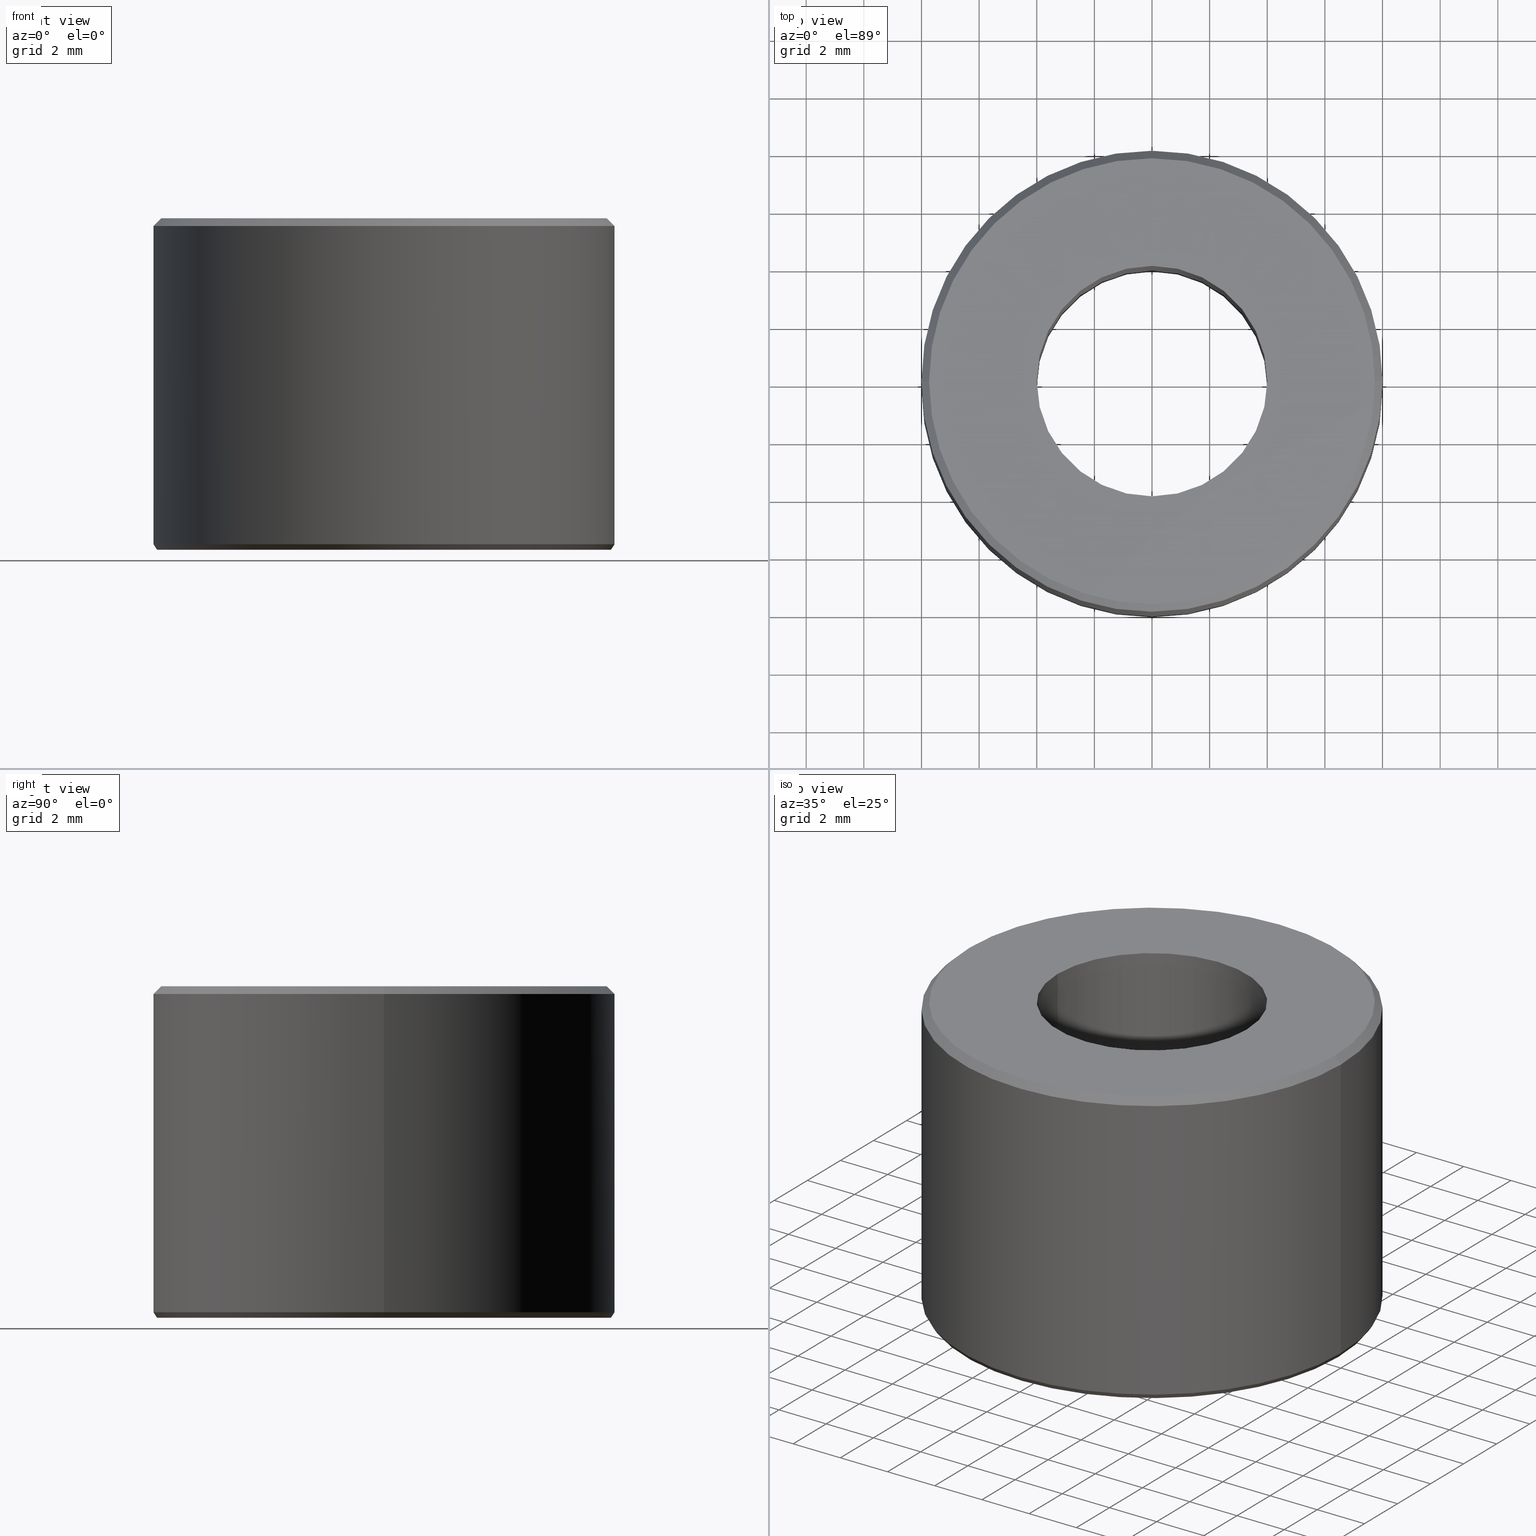
[diagram: canonical four-view strip — front | top / right | iso, engineering-drawing reading convention]
A machine part, canonical four-view strip (front | top / right | iso — engineering-drawing reading convention). The complete STEP part file that produces these views, byte-faithful:
ISO-10303-21;
HEADER;
FILE_DESCRIPTION (( 'STEP AP203' ),
    '1' );
FILE_NAME ('UM ER 11 M.STEP',
    '2019-04-22T08:53:59',
    ( '' ),
    ( '' ),
    'SwSTEP 2.0',
    'SolidWorks 2014',
    '' );
FILE_SCHEMA (( 'CONFIG_CONTROL_DESIGN' ));
ENDSEC;

DATA;
#1 = LOCAL_TIME ( 14, 23, 59.00000000000000000, #77 ) ;
#2 = ORIENTED_EDGE ( 'NONE', *, *, #282, .T. ) ;
#3 = EDGE_CURVE ( 'NONE', #91, #215, #121, .T. ) ;
#4 = ORIENTED_EDGE ( 'NONE', *, *, #203, .F. ) ;
#5 = ORIENTED_EDGE ( 'NONE', *, *, #276, .T. ) ;
#6 = CC_DESIGN_SECURITY_CLASSIFICATION ( #33, ( #305 ) ) ;
#7 = DATE_AND_TIME ( #83, #167 ) ;
#8 = CALENDAR_DATE ( 2019, 22, 4 ) ;
#9 = CARTESIAN_POINT ( 'NONE',  ( 0.0000000000000000000, 0.0000000000000000000, 0.1893181058988668800 ) ) ;
#10 = EDGE_LOOP ( 'NONE', ( #114, #18, #205, #178 ) ) ;
#11 = CARTESIAN_POINT ( 'NONE',  ( 0.0000000000000000000, 0.0000000000000000000, -1.942890293094023900E-013 ) ) ;
#12 = EDGE_LOOP ( 'NONE', ( #233, #139, #64, #95 ) ) ;
#13 = DIRECTION ( 'NONE',  ( -0.0000000000000000000, -0.0000000000000000000, 1.000000000000000000 ) ) ;
#14 = CARTESIAN_POINT ( 'NONE',  ( 0.0000000000000000000, 0.0000000000000000000, -1.942890293094023900E-013 ) ) ;
#15 = DIRECTION ( 'NONE',  ( -0.0000000000000000000, -0.0000000000000000000, 1.000000000000000000 ) ) ;
#16 = AXIS2_PLACEMENT_3D ( 'NONE', #87, #120, #279 ) ;
#17 = CARTESIAN_POINT ( 'NONE',  ( 0.0000000000000000000, 0.0000000000000000000, 73.48525816159543900 ) ) ;
#18 = ORIENTED_EDGE ( 'NONE', *, *, #254, .T. ) ;
#19 = PERSON_AND_ORGANIZATION_ROLE ( 'design_supplier' ) ;
#20 = PRODUCT_RELATED_PRODUCT_CATEGORY ( 'detail', '', ( #174 ) ) ;
#21 = DIRECTION ( 'NONE',  ( 0.0000000000000000000, 0.0000000000000000000, 1.000000000000000000 ) ) ;
#22 = DIRECTION ( 'NONE',  ( -0.0000000000000000000, -0.0000000000000000000, 1.000000000000000000 ) ) ;
#23 = PERSON_AND_ORGANIZATION ( #296, #126 ) ;
#24 = CARTESIAN_POINT ( 'NONE',  ( 7.734513274336237000, 9.634610658778705300E-016, 11.49999999999980300 ) ) ;
#25 = DIRECTION ( 'NONE',  ( 0.5451180342252927000, 0.0000000000000000000, 0.8383593076732389600 ) ) ;
#26 = CARTESIAN_POINT ( 'NONE',  ( 8.000000000000000000, 0.0000000000000000000, 0.1893181058988668800 ) ) ;
#27 = ADVANCED_FACE ( 'NONE', ( #188 ), #60, .T. ) ;
#28 = CC_DESIGN_PERSON_AND_ORGANIZATION_ASSIGNMENT ( #236, #130, ( #33 ) ) ;
#29 = PERSON_AND_ORGANIZATION ( #296, #126 ) ;
#30 = ADVANCED_FACE ( 'NONE', ( #113 ), #34, .T. ) ;
#31 = ADVANCED_FACE ( 'NONE', ( #180 ), #160, .T. ) ;
#32 = ORIENTED_EDGE ( 'NONE', *, *, #127, .F. ) ;
#33 = SECURITY_CLASSIFICATION ( '', '', #164 ) ;
#34 = CYLINDRICAL_SURFACE ( 'NONE', #39, 8.000000000000000000 ) ;
#35 = AXIS2_PLACEMENT_3D ( 'NONE', #190, #179, #209 ) ;
#36 = UNCERTAINTY_MEASURE_WITH_UNIT (LENGTH_MEASURE( 1.000000000000000100E-005 ), #342, 'distance_accuracy_value', 'NONE');
#37 = LINE ( 'NONE', #240, #326 ) ;
#38 = CARTESIAN_POINT ( 'NONE',  ( -7.876901570977517000, 9.646422296096375300E-016, -1.942890293094023900E-013 ) ) ;
#39 = AXIS2_PLACEMENT_3D ( 'NONE', #202, #271, #273 ) ;
#40 = DIRECTION ( 'NONE',  ( -0.0000000000000000000, -0.0000000000000000000, 1.000000000000000000 ) ) ;
#41 = CARTESIAN_POINT ( 'NONE',  ( -3.999999999999998200, 4.898587196589411800E-016, 11.49999999999980300 ) ) ;
#42 = EDGE_LOOP ( 'NONE', ( #224, #85 ) ) ;
#43 = ORIENTED_EDGE ( 'NONE', *, *, #290, .T. ) ;
#44 = CARTESIAN_POINT ( 'NONE',  ( 0.0000000000000000000, 0.0000000000000000000, 11.23451327433603500 ) ) ;
#45 = DATE_TIME_ROLE ( 'classification_date' ) ;
#46 = CARTESIAN_POINT ( 'NONE',  ( 0.0000000000000000000, 0.0000000000000000000, 11.49999999999980300 ) ) ;
#47 = DIRECTION ( 'NONE',  ( -0.0000000000000000000, -0.0000000000000000000, 1.000000000000000000 ) ) ;
#48 = APPLICATION_PROTOCOL_DEFINITION ( 'international standard', 'config_control_design', 1994, #106 ) ;
#49 = CARTESIAN_POINT ( 'NONE',  ( 0.0000000000000000000, 0.0000000000000000000, -1.942890293094023900E-013 ) ) ;
#50 = APPLICATION_PROTOCOL_DEFINITION ( 'international standard', 'config_control_design', 1994, #69 ) ;
#51 = CARTESIAN_POINT ( 'NONE',  ( 3.999999999999998200, 0.0000000000000000000, 11.49999999999980300 ) ) ;
#52 = PERSON_AND_ORGANIZATION ( #296, #126 ) ;
#53 = APPROVAL_ROLE ( '' ) ;
#54 = EDGE_LOOP ( 'NONE', ( #283, #306 ) ) ;
#55 = ORIENTED_EDGE ( 'NONE', *, *, #325, .T. ) ;
#56 = DESIGN_CONTEXT ( 'detailed design', #69, 'design' ) ;
#57 = VECTOR ( 'NONE', #25, 1000.000000000000000 ) ;
#58 = EDGE_CURVE ( 'NONE', #328, #63, #98, .T. ) ;
#59 = AXIS2_PLACEMENT_3D ( 'NONE', #263, #317, #157 ) ;
#60 = CONICAL_SURFACE ( 'NONE', #312, 8.000000000000000000, 0.7853981633974401700 ) ;
#61 = LINE ( 'NONE', #155, #189 ) ;
#62 = VERTEX_POINT ( 'NONE', #24 ) ;
#63 = VERTEX_POINT ( 'NONE', #51 ) ;
#64 = ORIENTED_EDGE ( 'NONE', *, *, #262, .T. ) ;
#65 = ORIENTED_EDGE ( 'NONE', *, *, #143, .T. ) ;
#66 = CARTESIAN_POINT ( 'NONE',  ( 4.000000000000000000, 0.0000000000000000000, -1.942890293094023900E-013 ) ) ;
#67 = AXIS2_PLACEMENT_3D ( 'NONE', #131, #15, #162 ) ;
#68 =( NAMED_UNIT ( * ) SI_UNIT ( $, .STERADIAN. ) SOLID_ANGLE_UNIT ( ) );
#69 = APPLICATION_CONTEXT ( 'configuration controlled 3d designs of mechanical parts and assemblies' ) ;
#70 =( NAMED_UNIT ( * ) PLANE_ANGLE_UNIT ( ) SI_UNIT ( $, .RADIAN. ) );
#71 = DIRECTION ( 'NONE',  ( -0.0000000000000000000, -0.0000000000000000000, 1.000000000000000000 ) ) ;
#72 = ORIENTED_EDGE ( 'NONE', *, *, #210, .F. ) ;
#73 = CARTESIAN_POINT ( 'NONE',  ( 0.0000000000000000000, 0.0000000000000000000, 11.49999999999980300 ) ) ;
#74 = DATE_TIME_ROLE ( 'creation_date' ) ;
#75 = CARTESIAN_POINT ( 'NONE',  ( 0.0000000000000000000, 0.0000000000000000000, 73.48525816159543900 ) ) ;
#76 = VERTEX_POINT ( 'NONE', #343 ) ;
#77 = COORDINATED_UNIVERSAL_TIME_OFFSET ( 5, 30, .AHEAD. ) ;
#78 = CLOSED_SHELL ( 'NONE', ( #332, #30, #176, #337, #281, #322, #187, #31, #27, #99 ) ) ;
#79 = CIRCLE ( 'NONE', #175, 4.000000000000000000 ) ;
#80 = ORIENTED_EDGE ( 'NONE', *, *, #249, .T. ) ;
#81 = ORIENTED_EDGE ( 'NONE', *, *, #181, .F. ) ;
#82 = ORIENTED_EDGE ( 'NONE', *, *, #268, .F. ) ;
#83 = CALENDAR_DATE ( 2019, 22, 4 ) ;
#84 = LOCAL_TIME ( 14, 23, 59.00000000000000000, #168 ) ;
#85 = ORIENTED_EDGE ( 'NONE', *, *, #210, .T. ) ;
#86 = DIRECTION ( 'NONE',  ( -0.0000000000000000000, -0.0000000000000000000, 1.000000000000000000 ) ) ;
#87 = CARTESIAN_POINT ( 'NONE',  ( 0.0000000000000000000, 7.876901570977517000, -1.977277731909836800E-013 ) ) ;
#88 = APPROVAL ( #221, 'UNSPECIFIED' ) ;
#89 = DIRECTION ( 'NONE',  ( -0.0000000000000000000, -0.0000000000000000000, 1.000000000000000000 ) ) ;
#90 = AXIS2_PLACEMENT_3D ( 'NONE', #247, #196, #243 ) ;
#91 = VERTEX_POINT ( 'NONE', #26 ) ;
#92 = DATE_AND_TIME ( #177, #246 ) ;
#93 = PRODUCT_DEFINITION ( 'UNKNOWN', '', #305, #56 ) ;
#94 = MANIFOLD_SOLID_BREP ( 'Revolve1', #78 ) ;
#95 = ORIENTED_EDGE ( 'NONE', *, *, #143, .F. ) ;
#96 = DIRECTION ( 'NONE',  ( 1.000000000000000000, 0.0000000000000000000, 0.0000000000000000000 ) ) ;
#97 = CARTESIAN_POINT ( 'NONE',  ( 0.0000000000000000000, 0.0000000000000000000, 11.49999999999980300 ) ) ;
#98 = CIRCLE ( 'NONE', #123, 3.999999999999998200 ) ;
#99 = ADVANCED_FACE ( 'NONE', ( #211, #267 ), #140, .F. ) ;
#100 = EDGE_CURVE ( 'NONE', #156, #76, #335, .T. ) ;
#101 = DIRECTION ( 'NONE',  ( -0.0000000000000000000, -0.0000000000000000000, 1.000000000000000000 ) ) ;
#102 = DIRECTION ( 'NONE',  ( -0.0000000000000000000, -0.0000000000000000000, 1.000000000000000000 ) ) ;
#103 = DIRECTION ( 'NONE',  ( -0.0000000000000000000, -0.0000000000000000000, 1.000000000000000000 ) ) ;
#104 = MECHANICAL_CONTEXT ( 'NONE', #106, 'mechanical' ) ;
#105 = DIRECTION ( 'NONE',  ( 1.000000000000000000, 0.0000000000000000000, 0.0000000000000000000 ) ) ;
#106 = APPLICATION_CONTEXT ( 'configuration controlled 3d designs of mechanical parts and assemblies' ) ;
#107 = APPROVAL_DATE_TIME ( #184, #88 ) ;
#108 = CIRCLE ( 'NONE', #173, 7.876901570977517000 ) ;
#109 = CC_DESIGN_DATE_AND_TIME_ASSIGNMENT ( #92, #74, ( #93 ) ) ;
#110 = APPROVAL_ROLE ( '' ) ;
#111 = CARTESIAN_POINT ( 'NONE',  ( 0.0000000000000000000, 7.734513274336237000, 11.49999999999980100 ) ) ;
#112 = DIRECTION ( 'NONE',  ( 1.000000000000000000, 0.0000000000000000000, 0.0000000000000000000 ) ) ;
#113 = FACE_OUTER_BOUND ( 'NONE', #10, .T. ) ;
#114 = ORIENTED_EDGE ( 'NONE', *, *, #181, .T. ) ;
#115 = EDGE_LOOP ( 'NONE', ( #72, #277, #5, #349 ) ) ;
#116 = AXIS2_PLACEMENT_3D ( 'NONE', #256, #89, #275 ) ;
#117 = CYLINDRICAL_SURFACE ( 'NONE', #67, 3.999999999999999100 ) ;
#118 = CC_DESIGN_DATE_AND_TIME_ASSIGNMENT ( #301, #45, ( #33 ) ) ;
#119 = CC_DESIGN_PERSON_AND_ORGANIZATION_ASSIGNMENT ( #29, #245, ( #93 ) ) ;
#120 = DIRECTION ( 'NONE',  ( 0.0000000000000000000, -0.0000000000000000000, 1.000000000000000000 ) ) ;
#121 = LINE ( 'NONE', #303, #327 ) ;
#122 = PLANE ( 'NONE',  #16 ) ;
#123 = AXIS2_PLACEMENT_3D ( 'NONE', #73, #200, #138 ) ;
#124 = CC_DESIGN_PERSON_AND_ORGANIZATION_ASSIGNMENT ( #308, #19, ( #305 ) ) ;
#125 = VECTOR ( 'NONE', #220, 1000.000000000000000 ) ;
#126 = ORGANIZATION ( 'UNSPECIFIED', 'UNSPECIFIED', '' ) ;
#127 = EDGE_CURVE ( 'NONE', #310, #62, #316, .T. ) ;
#128 = ORIENTED_EDGE ( 'NONE', *, *, #203, .T. ) ;
#129 = DIRECTION ( 'NONE',  ( 1.000000000000000000, 0.0000000000000000000, 0.0000000000000000000 ) ) ;
#130 = PERSON_AND_ORGANIZATION_ROLE ( 'classification_officer' ) ;
#131 = CARTESIAN_POINT ( 'NONE',  ( 0.0000000000000000000, 0.0000000000000000000, 73.48525816159543900 ) ) ;
#132 = DIRECTION ( 'NONE',  ( -0.0000000000000000000, -0.0000000000000000000, 1.000000000000000000 ) ) ;
#133 = ADVANCED_BREP_SHAPE_REPRESENTATION ( 'UM ER 11 M', ( #94, #331 ), #265 ) ;
#134 = AXIS2_PLACEMENT_3D ( 'NONE', #44, #102, #319 ) ;
#135 = CARTESIAN_POINT ( 'NONE',  ( 0.0000000000000000000, 0.0000000000000000000, 0.0000000000000000000 ) ) ;
#136 = LINE ( 'NONE', #166, #57 ) ;
#137 = VECTOR ( 'NONE', #315, 1000.000000000000000 ) ;
#138 = DIRECTION ( 'NONE',  ( 1.000000000000000000, 0.0000000000000000000, 0.0000000000000000000 ) ) ;
#139 = ORIENTED_EDGE ( 'NONE', *, *, #300, .T. ) ;
#140 = PLANE ( 'NONE',  #231 ) ;
#141 = EDGE_LOOP ( 'NONE', ( #55, #258, #81, #229 ) ) ;
#142 = FACE_OUTER_BOUND ( 'NONE', #141, .T. ) ;
#143 = EDGE_CURVE ( 'NONE', #76, #91, #207, .T. ) ;
#144 = CYLINDRICAL_SURFACE ( 'NONE', #280, 3.999999999999999100 ) ;
#145 = EDGE_LOOP ( 'NONE', ( #171, #65, #170, #150 ) ) ;
#146 = EDGE_CURVE ( 'NONE', #286, #328, #61, .T. ) ;
#147 = APPROVAL_DATE_TIME ( #223, #295 ) ;
#148 = FACE_OUTER_BOUND ( 'NONE', #12, .T. ) ;
#149 = ORIENTED_EDGE ( 'NONE', *, *, #290, .F. ) ;
#150 = ORIENTED_EDGE ( 'NONE', *, *, #239, .F. ) ;
#151 = CIRCLE ( 'NONE', #225, 4.000000000000000000 ) ;
#152 = CC_DESIGN_APPROVAL ( #295, ( #33 ) ) ;
#153 = DIRECTION ( 'NONE',  ( 1.000000000000000000, 0.0000000000000000000, 0.0000000000000000000 ) ) ;
#154 = APPROVAL_PERSON_ORGANIZATION ( #228, #295, #158 ) ;
#155 = CARTESIAN_POINT ( 'NONE',  ( -3.999999999999999100, 4.898587196589411800E-016, 73.48525816159543900 ) ) ;
#156 = VERTEX_POINT ( 'NONE', #285 ) ;
#157 = DIRECTION ( 'NONE',  ( 1.000000000000000000, 0.0000000000000000000, 0.0000000000000000000 ) ) ;
#158 = APPROVAL_ROLE ( '' ) ;
#159 = COORDINATED_UNIVERSAL_TIME_OFFSET ( 5, 30, .AHEAD. ) ;
#160 = CYLINDRICAL_SURFACE ( 'NONE', #204, 8.000000000000000000 ) ;
#161 = VECTOR ( 'NONE', #288, 1000.000000000000000 ) ;
#162 = DIRECTION ( 'NONE',  ( 1.000000000000000000, 0.0000000000000000000, 0.0000000000000000000 ) ) ;
#163 = CARTESIAN_POINT ( 'NONE',  ( 8.000000000000000000, 9.797174393178825700E-016, 11.23451327433603500 ) ) ;
#164 = SECURITY_CLASSIFICATION_LEVEL ( 'unclassified' ) ;
#165 = VERTEX_POINT ( 'NONE', #336 ) ;
#166 = CARTESIAN_POINT ( 'NONE',  ( 7.876901570977517000, 0.0000000000000000000, -1.942890293094023900E-013 ) ) ;
#167 = LOCAL_TIME ( 14, 23, 59.00000000000000000, #235 ) ;
#168 = COORDINATED_UNIVERSAL_TIME_OFFSET ( 5, 30, .AHEAD. ) ;
#169 = DIRECTION ( 'NONE',  ( -0.0000000000000000000, -0.0000000000000000000, 1.000000000000000000 ) ) ;
#170 = ORIENTED_EDGE ( 'NONE', *, *, #3, .T. ) ;
#171 = ORIENTED_EDGE ( 'NONE', *, *, #254, .F. ) ;
#172 = DIRECTION ( 'NONE',  ( -1.000000000000000000, 0.0000000000000000000, 0.0000000000000000000 ) ) ;
#173 = AXIS2_PLACEMENT_3D ( 'NONE', #14, #47, #105 ) ;
#174 = PRODUCT ( 'UM ER 11 M', 'UM ER 11 M', '', ( #104 ) ) ;
#175 = AXIS2_PLACEMENT_3D ( 'NONE', #49, #103, #291 ) ;
#176 = ADVANCED_FACE ( 'NONE', ( #142 ), #274, .T. ) ;
#177 = CALENDAR_DATE ( 2019, 22, 4 ) ;
#178 = ORIENTED_EDGE ( 'NONE', *, *, #3, .F. ) ;
#179 = DIRECTION ( 'NONE',  ( -0.0000000000000000000, -0.0000000000000000000, 1.000000000000000000 ) ) ;
#180 = FACE_OUTER_BOUND ( 'NONE', #145, .T. ) ;
#181 = EDGE_CURVE ( 'NONE', #91, #76, #250, .T. ) ;
#182 = DIRECTION ( 'NONE',  ( 0.0000000000000000000, 0.0000000000000000000, -1.000000000000000000 ) ) ;
#183 = VERTEX_POINT ( 'NONE', #314 ) ;
#184 = DATE_AND_TIME ( #251, #324 ) ;
#185 = FACE_OUTER_BOUND ( 'NONE', #309, .T. ) ;
#186 = DIRECTION ( 'NONE',  ( -0.0000000000000000000, -0.0000000000000000000, 1.000000000000000000 ) ) ;
#187 = ADVANCED_FACE ( 'NONE', ( #148 ), #292, .T. ) ;
#188 = FACE_OUTER_BOUND ( 'NONE', #345, .T. ) ;
#189 = VECTOR ( 'NONE', #13, 1000.000000000000000 ) ;
#190 = CARTESIAN_POINT ( 'NONE',  ( 0.0000000000000000000, 0.0000000000000000000, 11.49999999999980300 ) ) ;
#191 = ORIENTED_EDGE ( 'NONE', *, *, #300, .F. ) ;
#192 = CARTESIAN_POINT ( 'NONE',  ( 0.0000000000000000000, 0.0000000000000000000, -1.942890293094023900E-013 ) ) ;
#193 = APPROVAL_STATUS ( 'not_yet_approved' ) ;
#194 = AXIS2_PLACEMENT_3D ( 'NONE', #46, #132, #294 ) ;
#195 = CIRCLE ( 'NONE', #90, 8.000000000000000000 ) ;
#196 = DIRECTION ( 'NONE',  ( -0.0000000000000000000, -0.0000000000000000000, 1.000000000000000000 ) ) ;
#197 = CIRCLE ( 'NONE', #35, 3.999999999999998200 ) ;
#198 = PERSON_AND_ORGANIZATION_ROLE ( 'creator' ) ;
#199 = EDGE_CURVE ( 'NONE', #310, #165, #321, .T. ) ;
#200 = DIRECTION ( 'NONE',  ( -0.0000000000000000000, -0.0000000000000000000, 1.000000000000000000 ) ) ;
#201 = PRODUCT_DEFINITION_SHAPE ( 'NONE', 'NONE',  #93 ) ;
#202 = CARTESIAN_POINT ( 'NONE',  ( 0.0000000000000000000, 0.0000000000000000000, 73.48525816159543900 ) ) ;
#203 = EDGE_CURVE ( 'NONE', #286, #238, #151, .T. ) ;
#204 = AXIS2_PLACEMENT_3D ( 'NONE', #75, #298, #112 ) ;
#205 = ORIENTED_EDGE ( 'NONE', *, *, #276, .F. ) ;
#206 = LINE ( 'NONE', #163, #125 ) ;
#207 = CIRCLE ( 'NONE', #59, 8.000000000000000000 ) ;
#208 = SHAPE_DEFINITION_REPRESENTATION ( #201, #133 ) ;
#209 = DIRECTION ( 'NONE',  ( 1.000000000000000000, 0.0000000000000000000, 0.0000000000000000000 ) ) ;
#210 = EDGE_CURVE ( 'NONE', #62, #310, #278, .T. ) ;
#211 = FACE_BOUND ( 'NONE', #54, .T. ) ;
#212 = AXIS2_PLACEMENT_3D ( 'NONE', #9, #40, #129 ) ;
#213 = EDGE_LOOP ( 'NONE', ( #344, #191 ) ) ;
#214 = CARTESIAN_POINT ( 'NONE',  ( -8.000000000000000000, 0.0000000000000000000, 11.23451327433603500 ) ) ;
#215 = VERTEX_POINT ( 'NONE', #241 ) ;
#216 = AXIS2_PLACEMENT_3D ( 'NONE', #97, #186, #287 ) ;
#217 = CONICAL_SURFACE ( 'NONE', #348, 8.000000000000000000, 0.7853981633974401700 ) ;
#218 = ORIENTED_EDGE ( 'NONE', *, *, #249, .F. ) ;
#219 = DIRECTION ( 'NONE',  ( -1.000000000000000000, 0.0000000000000000000, -0.0000000000000000000 ) ) ;
#220 = DIRECTION ( 'NONE',  ( 0.7071067811865418000, 8.659560562354862600E-017, -0.7071067811865532300 ) ) ;
#221 = APPROVAL_STATUS ( 'not_yet_approved' ) ;
#222 = APPROVAL ( #193, 'UNSPECIFIED' ) ;
#223 = DATE_AND_TIME ( #284, #1 ) ;
#224 = ORIENTED_EDGE ( 'NONE', *, *, #127, .T. ) ;
#225 = AXIS2_PLACEMENT_3D ( 'NONE', #192, #71, #320 ) ;
#226 = CC_DESIGN_PERSON_AND_ORGANIZATION_ASSIGNMENT ( #227, #198, ( #305 ) ) ;
#227 = PERSON_AND_ORGANIZATION ( #296, #126 ) ;
#228 = PERSON_AND_ORGANIZATION ( #296, #126 ) ;
#229 = ORIENTED_EDGE ( 'NONE', *, *, #262, .F. ) ;
#230 = ORIENTED_EDGE ( 'NONE', *, *, #146, .T. ) ;
#231 = AXIS2_PLACEMENT_3D ( 'NONE', #111, #248, #219 ) ;
#232 = CARTESIAN_POINT ( 'NONE',  ( 0.0000000000000000000, 0.0000000000000000000, 11.23451327433603500 ) ) ;
#233 = ORIENTED_EDGE ( 'NONE', *, *, #100, .F. ) ;
#234 = VECTOR ( 'NONE', #270, 1000.000000000000000 ) ;
#235 = COORDINATED_UNIVERSAL_TIME_OFFSET ( 5, 30, .AHEAD. ) ;
#236 = PERSON_AND_ORGANIZATION ( #296, #126 ) ;
#237 = CARTESIAN_POINT ( 'NONE',  ( 0.0000000000000000000, 0.0000000000000000000, -1.942890293094023900E-013 ) ) ;
#238 = VERTEX_POINT ( 'NONE', #66 ) ;
#239 = EDGE_CURVE ( 'NONE', #165, #215, #195, .T. ) ;
#240 = CARTESIAN_POINT ( 'NONE',  ( 3.999999999999999100, 0.0000000000000000000, 73.48525816159543900 ) ) ;
#241 = CARTESIAN_POINT ( 'NONE',  ( 8.000000000000000000, 0.0000000000000000000, 11.23451327433603500 ) ) ;
#242 = DIRECTION ( 'NONE',  ( -1.000000000000000000, 0.0000000000000000000, 0.0000000000000000000 ) ) ;
#243 = DIRECTION ( 'NONE',  ( 1.000000000000000000, 0.0000000000000000000, 0.0000000000000000000 ) ) ;
#244 = AXIS2_PLACEMENT_3D ( 'NONE', #237, #318, #153 ) ;
#245 = PERSON_AND_ORGANIZATION_ROLE ( 'creator' ) ;
#246 = LOCAL_TIME ( 14, 23, 59.00000000000000000, #313 ) ;
#247 = CARTESIAN_POINT ( 'NONE',  ( 0.0000000000000000000, 0.0000000000000000000, 11.23451327433603500 ) ) ;
#248 = DIRECTION ( 'NONE',  ( 0.0000000000000000000, 0.0000000000000000000, -1.000000000000000000 ) ) ;
#249 = EDGE_CURVE ( 'NONE', #238, #286, #79, .T. ) ;
#250 = CIRCLE ( 'NONE', #212, 8.000000000000000000 ) ;
#251 = CALENDAR_DATE ( 2019, 22, 4 ) ;
#252 = FACE_OUTER_BOUND ( 'NONE', #213, .T. ) ;
#253 = AXIS2_PLACEMENT_3D ( 'NONE', #11, #101, #96 ) ;
#254 = EDGE_CURVE ( 'NONE', #76, #165, #311, .T. ) ;
#255 = FACE_OUTER_BOUND ( 'NONE', #115, .T. ) ;
#256 = CARTESIAN_POINT ( 'NONE',  ( 0.0000000000000000000, 0.0000000000000000000, -1.942890293094023900E-013 ) ) ;
#257 = CC_DESIGN_PERSON_AND_ORGANIZATION_ASSIGNMENT ( #52, #299, ( #174 ) ) ;
#258 = ORIENTED_EDGE ( 'NONE', *, *, #100, .T. ) ;
#259 = CC_DESIGN_APPROVAL ( #222, ( #305 ) ) ;
#260 = CIRCLE ( 'NONE', #116, 7.876901570977517000 ) ;
#261 = APPROVAL_PERSON_ORGANIZATION ( #330, #88, #110 ) ;
#262 = EDGE_CURVE ( 'NONE', #183, #91, #136, .T. ) ;
#263 = CARTESIAN_POINT ( 'NONE',  ( 0.0000000000000000000, 0.0000000000000000000, 0.1893181058988668800 ) ) ;
#264 = ORIENTED_EDGE ( 'NONE', *, *, #58, .T. ) ;
#265 =( GEOMETRIC_REPRESENTATION_CONTEXT ( 3 ) GLOBAL_UNCERTAINTY_ASSIGNED_CONTEXT ( ( #36 ) ) GLOBAL_UNIT_ASSIGNED_CONTEXT ( ( #342, #70, #68 ) ) REPRESENTATION_CONTEXT ( 'NONE', 'WORKASPACE' ) );
#266 = CARTESIAN_POINT ( 'NONE',  ( -8.000000000000000000, 9.797174393178825700E-016, 73.48525816159543900 ) ) ;
#267 = FACE_OUTER_BOUND ( 'NONE', #42, .T. ) ;
#268 = EDGE_CURVE ( 'NONE', #62, #215, #206, .T. ) ;
#269 = FACE_OUTER_BOUND ( 'NONE', #272, .T. ) ;
#270 = DIRECTION ( 'NONE',  ( -0.0000000000000000000, -0.0000000000000000000, 1.000000000000000000 ) ) ;
#271 = DIRECTION ( 'NONE',  ( -0.0000000000000000000, -0.0000000000000000000, 1.000000000000000000 ) ) ;
#272 = EDGE_LOOP ( 'NONE', ( #293, #218, #43, #2 ) ) ;
#273 = DIRECTION ( 'NONE',  ( 1.000000000000000000, 0.0000000000000000000, 0.0000000000000000000 ) ) ;
#274 = CONICAL_SURFACE ( 'NONE', #253, 7.876901570977517000, 0.5765299002231976100 ) ;
#275 = DIRECTION ( 'NONE',  ( 1.000000000000000000, 0.0000000000000000000, 0.0000000000000000000 ) ) ;
#276 = EDGE_CURVE ( 'NONE', #215, #165, #334, .T. ) ;
#277 = ORIENTED_EDGE ( 'NONE', *, *, #268, .T. ) ;
#278 = CIRCLE ( 'NONE', #194, 7.734513274336237000 ) ;
#279 = DIRECTION ( 'NONE',  ( 1.000000000000000000, 0.0000000000000000000, 0.0000000000000000000 ) ) ;
#280 = AXIS2_PLACEMENT_3D ( 'NONE', #17, #22, #341 ) ;
#281 = ADVANCED_FACE ( 'NONE', ( #269 ), #117, .F. ) ;
#282 = EDGE_CURVE ( 'NONE', #63, #328, #197, .T. ) ;
#283 = ORIENTED_EDGE ( 'NONE', *, *, #282, .F. ) ;
#284 = CALENDAR_DATE ( 2019, 22, 4 ) ;
#285 = CARTESIAN_POINT ( 'NONE',  ( -7.876901570977517000, 9.721798344637599500E-016, -1.942890293094023900E-013 ) ) ;
#286 = VERTEX_POINT ( 'NONE', #340 ) ;
#287 = DIRECTION ( 'NONE',  ( 1.000000000000000000, 0.0000000000000000000, 0.0000000000000000000 ) ) ;
#288 = DIRECTION ( 'NONE',  ( -0.7071067811865418000, 0.0000000000000000000, -0.7071067811865532300 ) ) ;
#289 = CARTESIAN_POINT ( 'NONE',  ( -7.734513274336237000, 0.0000000000000000000, 11.49999999999980300 ) ) ;
#290 = EDGE_CURVE ( 'NONE', #238, #63, #37, .T. ) ;
#291 = DIRECTION ( 'NONE',  ( 1.000000000000000000, 0.0000000000000000000, 0.0000000000000000000 ) ) ;
#292 = CONICAL_SURFACE ( 'NONE', #244, 7.876901570977517000, 0.5765299002231976100 ) ;
#293 = ORIENTED_EDGE ( 'NONE', *, *, #146, .F. ) ;
#294 = DIRECTION ( 'NONE',  ( 1.000000000000000000, 0.0000000000000000000, 0.0000000000000000000 ) ) ;
#295 = APPROVAL ( #338, 'UNSPECIFIED' ) ;
#296 = PERSON ( 'UNSPECIFIED', 'UNSPECIFIED', 'UNSPECIFIED', ('UNSPECIFIED'), ('UNSPECIFIED'), ('UNSPECIFIED') ) ;
#297 = APPROVAL_DATE_TIME ( #7, #222 ) ;
#298 = DIRECTION ( 'NONE',  ( -0.0000000000000000000, -0.0000000000000000000, 1.000000000000000000 ) ) ;
#299 = PERSON_AND_ORGANIZATION_ROLE ( 'design_owner' ) ;
#300 = EDGE_CURVE ( 'NONE', #156, #183, #260, .T. ) ;
#301 = DATE_AND_TIME ( #8, #84 ) ;
#302 = EDGE_LOOP ( 'NONE', ( #80, #128 ) ) ;
#303 = CARTESIAN_POINT ( 'NONE',  ( 8.000000000000000000, 0.0000000000000000000, 73.48525816159543900 ) ) ;
#304 = DIRECTION ( 'NONE',  ( 0.0000000000000000000, 0.0000000000000000000, -1.000000000000000000 ) ) ;
#305 = PRODUCT_DEFINITION_FORMATION_WITH_SPECIFIED_SOURCE ( 'ANY', '', #174, .NOT_KNOWN. ) ;
#306 = ORIENTED_EDGE ( 'NONE', *, *, #58, .F. ) ;
#307 = APPROVAL_PERSON_ORGANIZATION ( #23, #222, #53 ) ;
#308 = PERSON_AND_ORGANIZATION ( #296, #126 ) ;
#309 = EDGE_LOOP ( 'NONE', ( #4, #230, #264, #149 ) ) ;
#310 = VERTEX_POINT ( 'NONE', #289 ) ;
#311 = LINE ( 'NONE', #266, #234 ) ;
#312 = AXIS2_PLACEMENT_3D ( 'NONE', #347, #304, #172 ) ;
#313 = COORDINATED_UNIVERSAL_TIME_OFFSET ( 5, 30, .AHEAD. ) ;
#314 = CARTESIAN_POINT ( 'NONE',  ( 7.876901570977517000, 0.0000000000000000000, -1.942890293094023900E-013 ) ) ;
#315 = DIRECTION ( 'NONE',  ( -0.5451180342252927000, 6.675770557715020500E-017, 0.8383593076732389600 ) ) ;
#316 = CIRCLE ( 'NONE', #216, 7.734513274336237000 ) ;
#317 = DIRECTION ( 'NONE',  ( -0.0000000000000000000, -0.0000000000000000000, 1.000000000000000000 ) ) ;
#318 = DIRECTION ( 'NONE',  ( -0.0000000000000000000, -0.0000000000000000000, 1.000000000000000000 ) ) ;
#319 = DIRECTION ( 'NONE',  ( 1.000000000000000000, 0.0000000000000000000, 0.0000000000000000000 ) ) ;
#320 = DIRECTION ( 'NONE',  ( 1.000000000000000000, 0.0000000000000000000, 0.0000000000000000000 ) ) ;
#321 = LINE ( 'NONE', #214, #161 ) ;
#322 = ADVANCED_FACE ( 'NONE', ( #252, #329 ), #122, .F. ) ;
#323 = DIRECTION ( 'NONE',  ( 1.000000000000000000, 0.0000000000000000000, 0.0000000000000000000 ) ) ;
#324 = LOCAL_TIME ( 14, 23, 59.00000000000000000, #159 ) ;
#325 = EDGE_CURVE ( 'NONE', #183, #156, #108, .T. ) ;
#326 = VECTOR ( 'NONE', #86, 1000.000000000000000 ) ;
#327 = VECTOR ( 'NONE', #169, 1000.000000000000000 ) ;
#328 = VERTEX_POINT ( 'NONE', #41 ) ;
#329 = FACE_BOUND ( 'NONE', #302, .T. ) ;
#330 = PERSON_AND_ORGANIZATION ( #296, #126 ) ;
#331 = AXIS2_PLACEMENT_3D ( 'NONE', #135, #21, #323 ) ;
#332 = ADVANCED_FACE ( 'NONE', ( #255 ), #217, .T. ) ;
#333 = ORIENTED_EDGE ( 'NONE', *, *, #199, .T. ) ;
#334 = CIRCLE ( 'NONE', #134, 8.000000000000000000 ) ;
#335 = LINE ( 'NONE', #38, #137 ) ;
#336 = CARTESIAN_POINT ( 'NONE',  ( -8.000000000000000000, 9.797174393178825700E-016, 11.23451327433603500 ) ) ;
#337 = ADVANCED_FACE ( 'NONE', ( #185 ), #144, .F. ) ;
#338 = APPROVAL_STATUS ( 'not_yet_approved' ) ;
#339 = CC_DESIGN_APPROVAL ( #88, ( #93 ) ) ;
#340 = CARTESIAN_POINT ( 'NONE',  ( -4.000000000000000000, 4.898587196589412800E-016, -1.942890293094023900E-013 ) ) ;
#341 = DIRECTION ( 'NONE',  ( 1.000000000000000000, 0.0000000000000000000, 0.0000000000000000000 ) ) ;
#342 =( LENGTH_UNIT ( ) NAMED_UNIT ( * ) SI_UNIT ( .MILLI., .METRE. ) );
#343 = CARTESIAN_POINT ( 'NONE',  ( -8.000000000000000000, 9.797174393178827600E-016, 0.1893181058988668800 ) ) ;
#344 = ORIENTED_EDGE ( 'NONE', *, *, #325, .F. ) ;
#345 = EDGE_LOOP ( 'NONE', ( #82, #32, #333, #346 ) ) ;
#346 = ORIENTED_EDGE ( 'NONE', *, *, #239, .T. ) ;
#347 = CARTESIAN_POINT ( 'NONE',  ( 0.0000000000000000000, 0.0000000000000000000, 11.23451327433603500 ) ) ;
#348 = AXIS2_PLACEMENT_3D ( 'NONE', #232, #182, #242 ) ;
#349 = ORIENTED_EDGE ( 'NONE', *, *, #199, .F. ) ;
ENDSEC;
END-ISO-10303-21;
